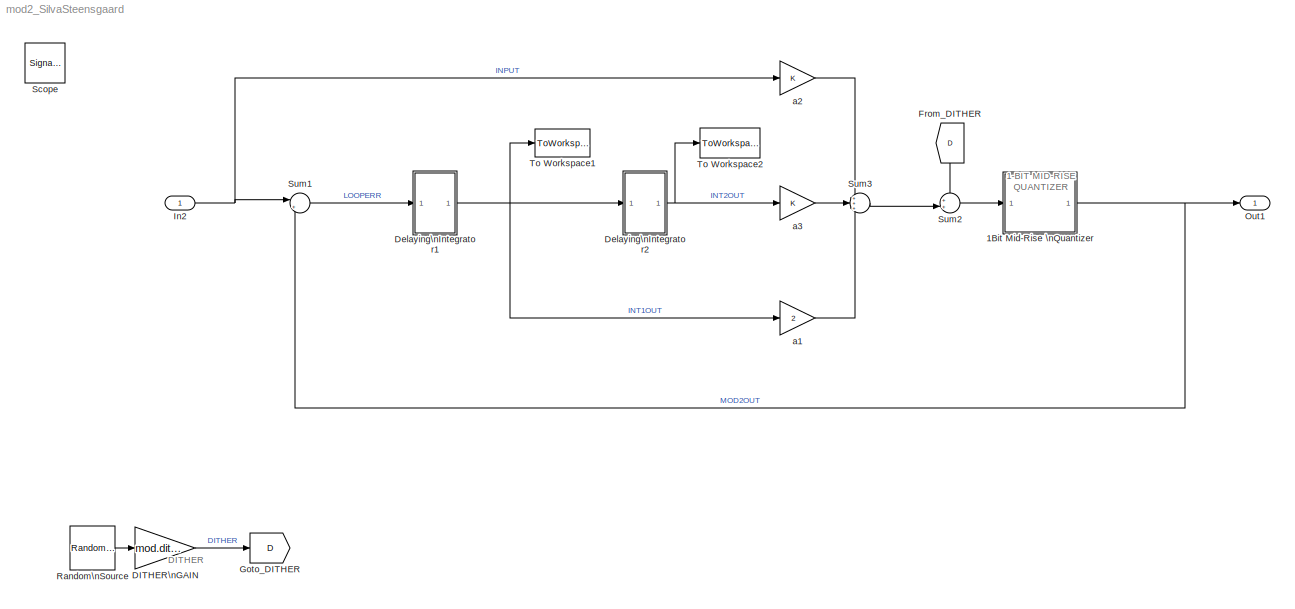
MODEL mod2_SilvaSteensgaard
KIND model
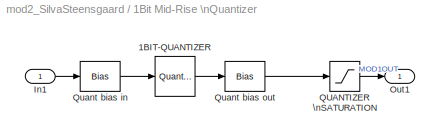
BLOCK [SubSystem] 1Bit Mid-Rise \nQuantizer
  FunctionWithSeparateData = off
  MaskHideContents = off
  MinAlgLoopOccurrences = off
  Opaque = off
  Ports = [1, 1]
  PropExecContextOutsideSubsystem = off
  RTWSystemCode = Auto
  RequestExecContextInheritance = off
  SID = 98
BLOCK [Quantizer] 1Bit Mid-Rise \nQuantizer/1BIT-QUANTIZER
  AttributesFormatString = step = 2
  LinearizeAsGain = off
  QuantizationInterval = 2
  SID = 59
  SampleTime = 1/Fs
BLOCK [Inport] 1Bit Mid-Rise \nQuantizer/In1
  IconDisplay = Port number
  SID = 100
BLOCK [Outport] 1Bit Mid-Rise \nQuantizer/Out1
  IconDisplay = Port number
  SID = 99
BLOCK [Saturate] 1Bit Mid-Rise \nQuantizer/QUANTIZER \nSATURATION
  AttributesFormatString = Limit quantizer\\noutput
  InputPortMap = u0
  LowerLimit = -(mod.qsatout1)
  Ports = [1, 1]
  SID = 33
  UpperLimit = mod.qsatout1
BLOCK [Bias] 1Bit Mid-Rise \nQuantizer/Quant bias in
  AttributesFormatString = Need offset to give\\nMID-RISE quantiser
  Bias = 1
  SID = 57
  SaturateOnIntegerOverflow = off
BLOCK [Bias] 1Bit Mid-Rise \nQuantizer/Quant bias out
  AttributesFormatString = Shift outputs to\\n..., -2, 1, 1, ...
  Bias = -1
  SID = 58
  SaturateOnIntegerOverflow = off
BLOCK [Gain] DITHER\nGAIN
  Gain = mod.dither
  OutDataTypeStr = Inherit: Inherit via internal rule
  ParamDataTypeStr = Inherit: Inherit via internal rule
  SID = 29
  SampleTime = 1/Fs
  SaturateOnIntegerOverflow = off
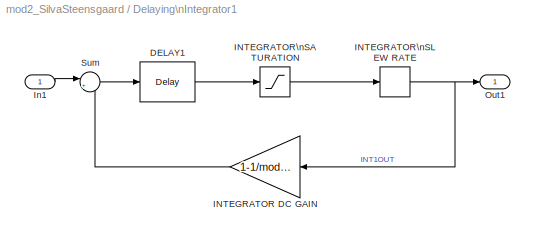
BLOCK [SubSystem] Delaying\nIntegrator1
  FunctionWithSeparateData = off
  MaskHideContents = off
  MinAlgLoopOccurrences = off
  Opaque = off
  Ports = [1, 1]
  PropExecContextOutsideSubsystem = off
  RTWSystemCode = Auto
  RequestExecContextInheritance = off
  SID = 101
BLOCK [Reference] Delaying\nIntegrator1/DELAY1  REF=dspsigops/Delay
  InputProcessing = Inherited (this choice will be removed - see release notes)
  Ports = [1, 1]
  SID = 116
  SourceBlock = dspsigops/Delay
  SourceType = Delay
  UserData = DataTag0
  UserDataPersistent = on
  delay = 1
  dif_ic_for_ch = off
  dif_ic_for_dly = off
  dly_unit = Samples
  ic = 0
  ic_detail = off
  reset_popup = None
BLOCK [Gain] Delaying\nIntegrator1/INTEGRATOR DC GAIN
  AttributesFormatString = Integrator leakage\\n(model finite integrator dc/LF\\ngain in analog modulators)
  Gain = 1-1/mod.igain1
  OutDataTypeStr = Inherit: Inherit via internal rule
  ParamDataTypeStr = Inherit: Inherit via internal rule
  SID = 32
  SaturateOnIntegerOverflow = off
BLOCK [Saturate] Delaying\nIntegrator1/INTEGRATOR\nSATURATION
  AttributesFormatString = Real integrators will have\\noutput swing limits (analog\\nsignal headroom or digital\\naccumulator min/max values)
  InputPortMap = u0
  LowerLimit = -(mod.isat1)
  Ports = [1, 1]
  SID = 36
  UpperLimit = mod.isat1
BLOCK [RateLimiter] Delaying\nIntegrator1/INTEGRATOR\nSLEW RATE
  AttributesFormatString = ...and\\nmay suffer from\\npoor slew rate
  FallingSlewLimit = -(mod.isr1)
  RisingSlewLimit = mod.isr1
  SID = 84
  SampleTimeMode = inherited
BLOCK [Inport] Delaying\nIntegrator1/In1
  IconDisplay = Port number
  SID = 103
BLOCK [Outport] Delaying\nIntegrator1/Out1
  IconDisplay = Port number
  SID = 102
BLOCK [Sum] Delaying\nIntegrator1/Sum
  AttributesFormatString = Integrator\\nsummer
  IconShape = round
  InputSameDT = off
  Inputs = |++
  OutDataTypeStr = Inherit: Inherit via internal rule
  Ports = [2, 1]
  SID = 3
  SaturateOnIntegerOverflow = off
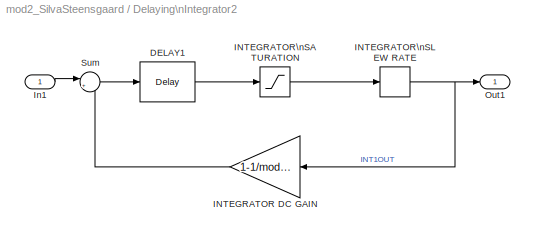
BLOCK [SubSystem] Delaying\nIntegrator2
  FunctionWithSeparateData = off
  MaskHideContents = off
  MinAlgLoopOccurrences = off
  Opaque = off
  Ports = [1, 1]
  PropExecContextOutsideSubsystem = off
  RTWSystemCode = Auto
  RequestExecContextInheritance = off
  SID = 117
BLOCK [Reference] Delaying\nIntegrator2/DELAY1  REF=dspsigops/Delay
  InputProcessing = Inherited (this choice will be removed - see release notes)
  Ports = [1, 1]
  SID = 119
  SourceBlock = dspsigops/Delay
  SourceType = Delay
  UserData = DataTag1
  UserDataPersistent = on
  delay = 1
  dif_ic_for_ch = off
  dif_ic_for_dly = off
  dly_unit = Samples
  ic = 0
  ic_detail = off
  reset_popup = None
BLOCK [Gain] Delaying\nIntegrator2/INTEGRATOR DC GAIN
  AttributesFormatString = Integrator leakage\\n(model finite integrator dc/LF\\ngain in analog modulators)
  Gain = 1-1/mod.igain1
  OutDataTypeStr = Inherit: Inherit via internal rule
  ParamDataTypeStr = Inherit: Inherit via internal rule
  SID = 122
  SaturateOnIntegerOverflow = off
BLOCK [Saturate] Delaying\nIntegrator2/INTEGRATOR\nSATURATION
  AttributesFormatString = Real integrators will have\\noutput swing limits (analog\\nsignal headroom or digital\\naccumulator min/max values)
  InputPortMap = u0
  LowerLimit = -(mod.isat1)
  Ports = [1, 1]
  SID = 120
  UpperLimit = mod.isat1
BLOCK [RateLimiter] Delaying\nIntegrator2/INTEGRATOR\nSLEW RATE
  AttributesFormatString = ...and\\nmay suffer from\\npoor slew rate
  FallingSlewLimit = -(mod.isr1)
  RisingSlewLimit = mod.isr1
  SID = 121
  SampleTimeMode = inherited
BLOCK [Inport] Delaying\nIntegrator2/In1
  IconDisplay = Port number
  SID = 118
BLOCK [Outport] Delaying\nIntegrator2/Out1
  IconDisplay = Port number
  SID = 124
BLOCK [Sum] Delaying\nIntegrator2/Sum
  AttributesFormatString = Integrator\\nsummer
  IconShape = round
  InputSameDT = off
  Inputs = |++
  OutDataTypeStr = Inherit: Inherit via internal rule
  Ports = [2, 1]
  SID = 123
  SaturateOnIntegerOverflow = off
BLOCK [From] From_DITHER
  GotoTag = D
  SID = 53
BLOCK [Goto] Goto_DITHER
  GotoTag = D
  SID = 52
BLOCK [Inport] In2
  IconDisplay = Port number
  SID = 134
BLOCK [Outport] Out1
  IconDisplay = Port number
  SID = 135
BLOCK [Reference] Random\nSource  REF=dspsrcs4/Random\nSource
  CltLength = 12
  DataType = Double
  IsInherit = off
  MaxVal = 1
  MeanVal = 0
  MinVal = -1
  NormMethod = Ziggurat
  OutComplex = Real
  Ports = [0, 1]
  RepMode = Not repeatable
  SID = 25
  SampFrame = 1
  SampMode = Discrete
  SampTime = 1/Fs
  SourceBlock = dspsrcs4/Random\nSource
  SourceType = Random Source
  SrcType = Uniform
  UserData = DataTag2
  UserDataPersistent = on
  VarVal = 1
  rawSeed = 1
BLOCK [SignalViewerScope] Scope
  IOType = viewer
  LimitDataPoints = off
  MaxDataPoints = 7500
  NumInputPorts = 5
  Ports = []
  RefreshTime = 0.019600
  SID = 75
  ShowDataMarkers = off
  ShowLegends = off
  YMax = 5~1.6~1.6~2.1~1.1
  YMin = -5~-0.6~-0.6~-1.1~-1.1
  ZoomMode = xonly
BLOCK [Sum] Sum1
  AttributesFormatString = Modulator Input\\nLoop Error (input - fbk)
  IconShape = round
  InputSameDT = off
  Inputs = |+-
  OutDataTypeStr = Inherit: Inherit via internal rule
  Ports = [2, 1]
  SID = 7
  SampleTime = 1/Fs
  SaturateOnIntegerOverflow = off
BLOCK [Sum] Sum2
  IconShape = round
  InputSameDT = off
  Inputs = ++|
  OutDataTypeStr = Inherit: Inherit via internal rule
  Ports = [2, 1]
  SID = 30
  SaturateOnIntegerOverflow = off
BLOCK [Sum] Sum3
  IconShape = round
  InputSameDT = off
  Inputs = +++
  OutDataTypeStr = Inherit: Inherit via internal rule
  Ports = [3, 1]
  SID = 131
  SaturateOnIntegerOverflow = off
BLOCK [ToWorkspace] To Workspace1
  MaxDataPoints = inf
  Ports = [1]
  SID = 60
  SampleTime = -1
  VariableName = INT1OUT
BLOCK [ToWorkspace] To Workspace2
  MaxDataPoints = inf
  Ports = [1]
  SID = 112
  SampleTime = -1
  VariableName = INT2OUT
BLOCK [Gain] a1
  Gain = 2
  OutDataTypeStr = Inherit: Inherit via internal rule
  ParamDataTypeStr = Inherit: Inherit via internal rule
  SID = 130
  SaturateOnIntegerOverflow = off
BLOCK [Gain] a2
  OutDataTypeStr = Inherit: Inherit via internal rule
  ParamDataTypeStr = Inherit: Inherit via internal rule
  SID = 132
  SaturateOnIntegerOverflow = off
BLOCK [Gain] a3
  OutDataTypeStr = Inherit: Inherit via internal rule
  ParamDataTypeStr = Inherit: Inherit via internal rule
  SID = 133
  SaturateOnIntegerOverflow = off
ANNOTATION (root): DITHER \n\n\n\n\n\n
ANNOTATION (root): 1-BIT MID-RISE \nQUANTIZER \n\n \n\n\n\n
LINE 1Bit Mid-Rise \nQuantizer/1BIT-QUANTIZER:1 -> 1Bit Mid-Rise \nQuantizer/Quant bias out:1
LINE 1Bit Mid-Rise \nQuantizer/In1:1 -> 1Bit Mid-Rise \nQuantizer/Quant bias in:1
LINE 1Bit Mid-Rise \nQuantizer/QUANTIZER \nSATURATION:1 -> 1Bit Mid-Rise \nQuantizer/Out1:1
LINE 1Bit Mid-Rise \nQuantizer/Quant bias in:1 -> 1Bit Mid-Rise \nQuantizer/1BIT-QUANTIZER:1
LINE 1Bit Mid-Rise \nQuantizer/Quant bias out:1 -> 1Bit Mid-Rise \nQuantizer/QUANTIZER \nSATURATION:1
NET 1Bit Mid-Rise \nQuantizer:1 -> Out1:1, Sum1:2
LINE DITHER\nGAIN:1 -> Goto_DITHER:1
LINE Delaying\nIntegrator1/DELAY1:1 -> Delaying\nIntegrator1/INTEGRATOR\nSATURATION:1
LINE Delaying\nIntegrator1/INTEGRATOR DC GAIN:1 -> Delaying\nIntegrator1/Sum:2
LINE Delaying\nIntegrator1/INTEGRATOR\nSATURATION:1 -> Delaying\nIntegrator1/INTEGRATOR\nSLEW RATE:1
NET Delaying\nIntegrator1/INTEGRATOR\nSLEW RATE:1 -> Delaying\nIntegrator1/INTEGRATOR DC GAIN:1, Delaying\nIntegrator1/Out1:1
LINE Delaying\nIntegrator1/In1:1 -> Delaying\nIntegrator1/Sum:1
LINE Delaying\nIntegrator1/Sum:1 -> Delaying\nIntegrator1/DELAY1:1
NET Delaying\nIntegrator1:1 -> Delaying\nIntegrator2:1, To Workspace1:1, a1:1
LINE Delaying\nIntegrator2/DELAY1:1 -> Delaying\nIntegrator2/INTEGRATOR\nSATURATION:1
LINE Delaying\nIntegrator2/INTEGRATOR DC GAIN:1 -> Delaying\nIntegrator2/Sum:2
LINE Delaying\nIntegrator2/INTEGRATOR\nSATURATION:1 -> Delaying\nIntegrator2/INTEGRATOR\nSLEW RATE:1
NET Delaying\nIntegrator2/INTEGRATOR\nSLEW RATE:1 -> Delaying\nIntegrator2/INTEGRATOR DC GAIN:1, Delaying\nIntegrator2/Out1:1
LINE Delaying\nIntegrator2/In1:1 -> Delaying\nIntegrator2/Sum:1
LINE Delaying\nIntegrator2/Sum:1 -> Delaying\nIntegrator2/DELAY1:1
NET Delaying\nIntegrator2:1 -> To Workspace2:1, a3:1
LINE From_DITHER:1 -> Sum2:1
NET In2:1 -> Sum1:1, a2:1
LINE Random\nSource:1 -> DITHER\nGAIN:1
LINE Sum1:1 -> Delaying\nIntegrator1:1
LINE Sum2:1 -> 1Bit Mid-Rise \nQuantizer:1
LINE Sum3:1 -> Sum2:2
LINE a1:1 -> Sum3:3
LINE a2:1 -> Sum3:1
LINE a3:1 -> Sum3:2
note: NET lines group one-source signal fan-out (src -> all destinations, sorted); 1:1 wires keep LINE
